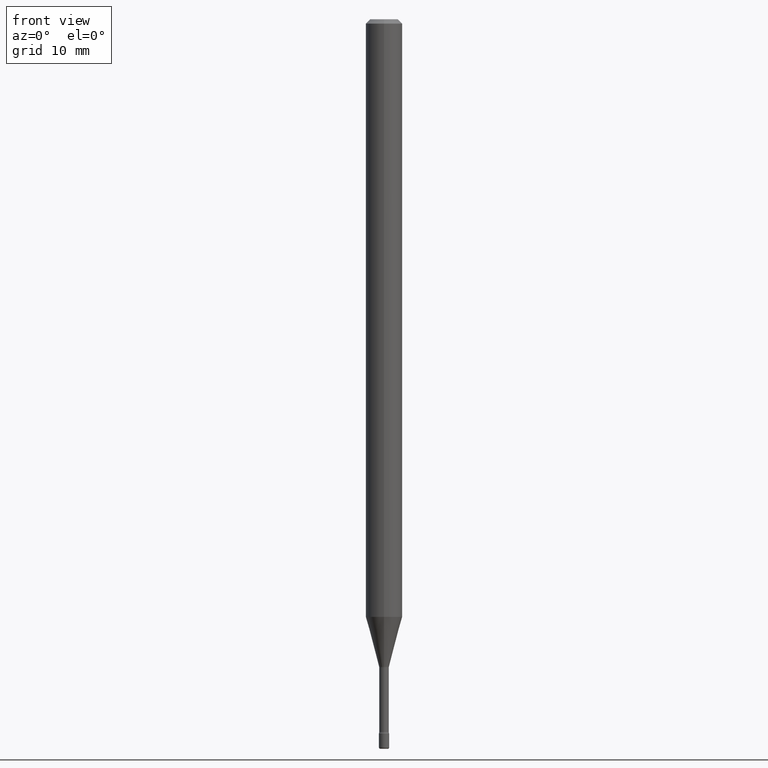
[diagram: clean part render]
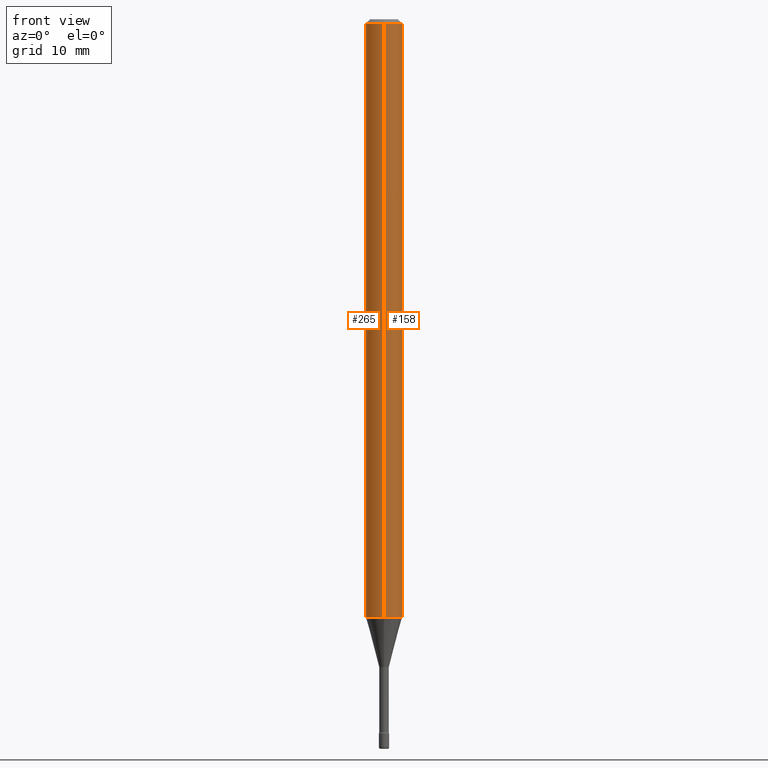
[diagram: same view with one multi-face feature highlighted, each face labeled with its STEP entity id]
A machine part, front view. The highlighted faces form ONE feature: a constant-radius fillet chain: 2 tangent blend faces with common blend radius 1.5875 mm. The faces share edges in the B-rep.
Their STEP definitions:
[1] entity #158 (Cylinder):
#12 = CARTESIAN_POINT ( 'NONE',  ( -4.364351673553912750E-16, -0.06250000000000005551, -0.01499999999999981036 ) ) ;
#18 = DIRECTION ( 'NONE',  ( -2.445543985909815616E-29, 3.491373677198440860E-15, 1.000000000000000000 ) ) ;
#26 = EDGE_CURVE ( 'NONE', #563, #55, #237, .T. ) ;
#27 = DIRECTION ( 'NONE',  ( -6.982962677686265922E-15, -1.000000000000000000, 4.370956789862821150E-15 ) ) ;
#50 = EDGE_LOOP ( 'NONE', ( #279, #62, #509, #228 ) ) ;
#55 = VERTEX_POINT ( 'NONE', #296 ) ;
#62 = ORIENTED_EDGE ( 'NONE', *, *, #372, .T. ) ;
#69 = CARTESIAN_POINT ( 'NONE',  ( -4.364351673553916201E-16, -0.06250000000000000000, 6.962842537161485677E-16 ) ) ;
#103 = DIRECTION ( 'NONE',  ( -2.445543985909815897E-29, 3.491373677198440860E-15, 1.000000000000000000 ) ) ;
#105 = CARTESIAN_POINT ( 'NONE',  ( 5.008814161251656206E-29, -7.150818802413359726E-15, -2.048139060311453541 ) ) ;
#135 = DIRECTION ( 'NONE',  ( -2.445543985909815616E-29, 3.491373677198440860E-15, 1.000000000000000000 ) ) ;
#138 = AXIS2_PLACEMENT_3D ( 'NONE', #105, #18, #27 ) ;
#157 = LINE ( 'NONE', #69, #407 ) ;
#158 = ADVANCED_FACE ( 'NONE', ( #335 ), #208, .T. ) ;
#194 = VERTEX_POINT ( 'NONE', #483 ) ;
#208 = CYLINDRICAL_SURFACE ( 'NONE', #263, 0.06250000000000000000 ) ;
#218 = DIRECTION ( 'NONE',  ( -6.982962677686265922E-15, -1.000000000000000000, 3.491373677198440860E-15 ) ) ;
#228 = ORIENTED_EDGE ( 'NONE', *, *, #418, .F. ) ;
#237 = CIRCLE ( 'NONE', #138, 0.06250000000000000000 ) ;
#261 = CARTESIAN_POINT ( 'NONE',  ( -1.169113584055446105E-44, 1.669184350826100908E-30, 4.780733988912460139E-16 ) ) ;
#263 = AXIS2_PLACEMENT_3D ( 'NONE', #261, #512, #218 ) ;
#279 = ORIENTED_EDGE ( 'NONE', *, *, #26, .T. ) ;
#296 = CARTESIAN_POINT ( 'NONE',  ( 4.440892098501126102E-16, 0.06249999999999283906, -2.048139060311453985 ) ) ;
#305 = CARTESIAN_POINT ( 'NONE',  ( 3.668315978864730028E-31, -5.237060515797671471E-17, -0.01500000000000002720 ) ) ;
#331 = EDGE_CURVE ( 'NONE', #431, #194, #490, .T. ) ;
#335 = FACE_OUTER_BOUND ( 'NONE', #50, .T. ) ;
#344 = DIRECTION ( 'NONE',  ( -6.982962677686265922E-15, -1.000000000000000000, 3.483106191921935554E-15 ) ) ;
#372 = EDGE_CURVE ( 'NONE', #55, #194, #495, .T. ) ;
#407 = VECTOR ( 'NONE', #413, 39.37007874015748143 ) ;
#409 = CARTESIAN_POINT ( 'NONE',  ( 4.440892098500625669E-16, 0.06250000000000000000, 2.598625440663435095E-16 ) ) ;
#413 = DIRECTION ( 'NONE',  ( -2.445543985909815897E-29, 3.491373677198440860E-15, 1.000000000000000000 ) ) ;
#418 = EDGE_CURVE ( 'NONE', #563, #431, #157, .T. ) ;
#419 = CARTESIAN_POINT ( 'NONE',  ( -4.364351673553416753E-16, -0.06250000000000717482, -2.048139060311453541 ) ) ;
#429 = VECTOR ( 'NONE', #103, 39.37007874015748143 ) ;
#431 = VERTEX_POINT ( 'NONE', #12 ) ;
#483 = CARTESIAN_POINT ( 'NONE',  ( 4.440892098501130047E-16, 0.06249999999999995143, -0.01500000000000024578 ) ) ;
#490 = CIRCLE ( 'NONE', #567, 0.06250000000000000000 ) ;
#495 = LINE ( 'NONE', #409, #429 ) ;
#509 = ORIENTED_EDGE ( 'NONE', *, *, #331, .F. ) ;
#512 = DIRECTION ( 'NONE',  ( -2.445543985909815616E-29, 3.491373677198440860E-15, 1.000000000000000000 ) ) ;
#563 = VERTEX_POINT ( 'NONE', #419 ) ;
#567 = AXIS2_PLACEMENT_3D ( 'NONE', #305, #135, #344 ) ;
[2] entity #265 (Cylinder):
#12 = CARTESIAN_POINT ( 'NONE',  ( -4.364351673553912750E-16, -0.06250000000000005551, -0.01499999999999981036 ) ) ;
#15 = ORIENTED_EDGE ( 'NONE', *, *, #136, .T. ) ;
#38 = DIRECTION ( 'NONE',  ( -2.445543985909815616E-29, 3.491373677198440860E-15, 1.000000000000000000 ) ) ;
#55 = VERTEX_POINT ( 'NONE', #296 ) ;
#69 = CARTESIAN_POINT ( 'NONE',  ( -4.364351673553916201E-16, -0.06250000000000000000, 6.962842537161485677E-16 ) ) ;
#74 = DIRECTION ( 'NONE',  ( -6.982962677686265922E-15, -1.000000000000000000, 3.483106191921935554E-15 ) ) ;
#75 = CIRCLE ( 'NONE', #229, 0.06250000000000000000 ) ;
#99 = CYLINDRICAL_SURFACE ( 'NONE', #300, 0.06250000000000000000 ) ;
#103 = DIRECTION ( 'NONE',  ( -2.445543985909815897E-29, 3.491373677198440860E-15, 1.000000000000000000 ) ) ;
#136 = EDGE_CURVE ( 'NONE', #55, #563, #433, .T. ) ;
#157 = LINE ( 'NONE', #69, #407 ) ;
#194 = VERTEX_POINT ( 'NONE', #483 ) ;
#210 = DIRECTION ( 'NONE',  ( -2.445543985909815616E-29, 3.491373677198440860E-15, 1.000000000000000000 ) ) ;
#229 = AXIS2_PLACEMENT_3D ( 'NONE', #295, #210, #74 ) ;
#234 = ORIENTED_EDGE ( 'NONE', *, *, #559, .F. ) ;
#264 = CARTESIAN_POINT ( 'NONE',  ( -1.169113584055446105E-44, 1.669184350826100908E-30, 4.780733988912460139E-16 ) ) ;
#265 = ADVANCED_FACE ( 'NONE', ( #345 ), #99, .T. ) ;
#268 = ORIENTED_EDGE ( 'NONE', *, *, #418, .T. ) ;
#273 = DIRECTION ( 'NONE',  ( -6.982962677686265922E-15, -1.000000000000000000, 3.491373677198440860E-15 ) ) ;
#289 = CARTESIAN_POINT ( 'NONE',  ( 5.008814161251656206E-29, -7.150818802413359726E-15, -2.048139060311453541 ) ) ;
#293 = DIRECTION ( 'NONE',  ( -2.445543985909815616E-29, 3.491373677198440860E-15, 1.000000000000000000 ) ) ;
#295 = CARTESIAN_POINT ( 'NONE',  ( 3.668315978864730028E-31, -5.237060515797671471E-17, -0.01500000000000002720 ) ) ;
#296 = CARTESIAN_POINT ( 'NONE',  ( 4.440892098501126102E-16, 0.06249999999999283906, -2.048139060311453985 ) ) ;
#300 = AXIS2_PLACEMENT_3D ( 'NONE', #264, #38, #273 ) ;
#345 = FACE_OUTER_BOUND ( 'NONE', #486, .T. ) ;
#372 = EDGE_CURVE ( 'NONE', #55, #194, #495, .T. ) ;
#407 = VECTOR ( 'NONE', #413, 39.37007874015748143 ) ;
#409 = CARTESIAN_POINT ( 'NONE',  ( 4.440892098500625669E-16, 0.06250000000000000000, 2.598625440663435095E-16 ) ) ;
#413 = DIRECTION ( 'NONE',  ( -2.445543985909815897E-29, 3.491373677198440860E-15, 1.000000000000000000 ) ) ;
#414 = DIRECTION ( 'NONE',  ( -6.982962677686265922E-15, -1.000000000000000000, 4.370956789862821150E-15 ) ) ;
#418 = EDGE_CURVE ( 'NONE', #563, #431, #157, .T. ) ;
#419 = CARTESIAN_POINT ( 'NONE',  ( -4.364351673553416753E-16, -0.06250000000000717482, -2.048139060311453541 ) ) ;
#429 = VECTOR ( 'NONE', #103, 39.37007874015748143 ) ;
#431 = VERTEX_POINT ( 'NONE', #12 ) ;
#433 = CIRCLE ( 'NONE', #469, 0.06250000000000000000 ) ;
#469 = AXIS2_PLACEMENT_3D ( 'NONE', #289, #293, #414 ) ;
#479 = ORIENTED_EDGE ( 'NONE', *, *, #372, .F. ) ;
#483 = CARTESIAN_POINT ( 'NONE',  ( 4.440892098501130047E-16, 0.06249999999999995143, -0.01500000000000024578 ) ) ;
#486 = EDGE_LOOP ( 'NONE', ( #479, #15, #268, #234 ) ) ;
#495 = LINE ( 'NONE', #409, #429 ) ;
#559 = EDGE_CURVE ( 'NONE', #194, #431, #75, .T. ) ;
#563 = VERTEX_POINT ( 'NONE', #419 ) ;